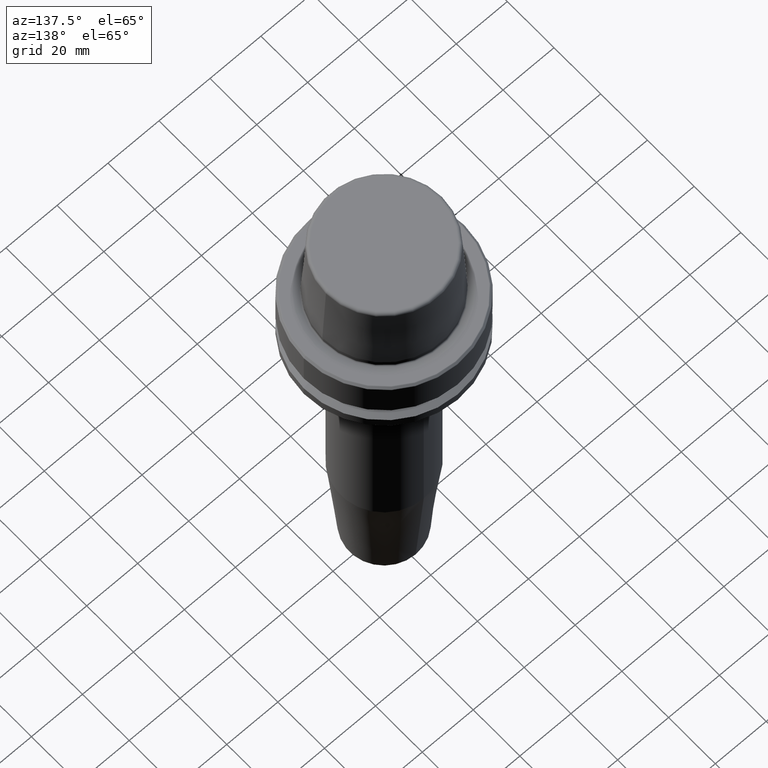
[diagram: clean part render]
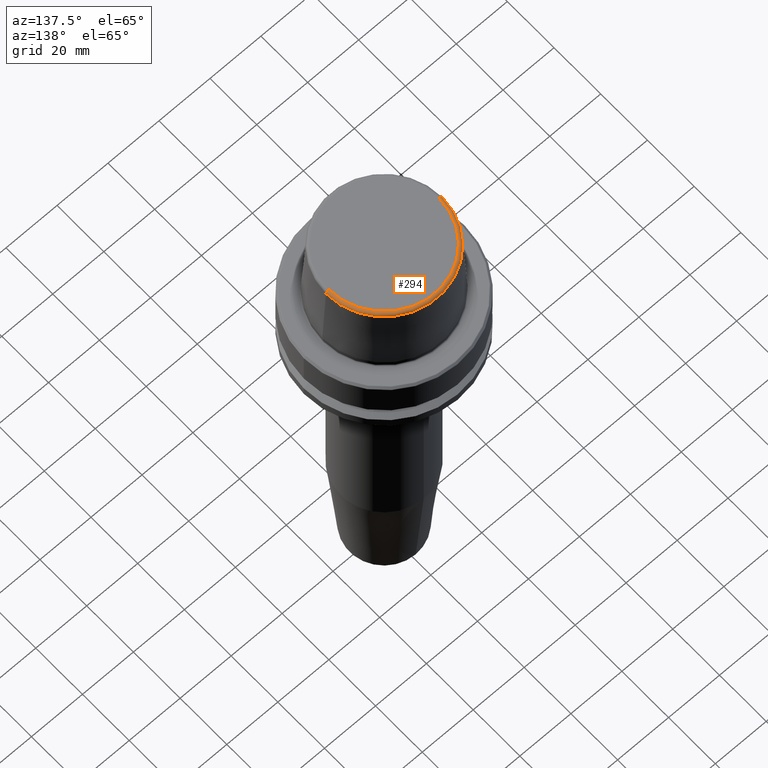
[diagram: same view with one face highlighted and labeled with its STEP entity id]
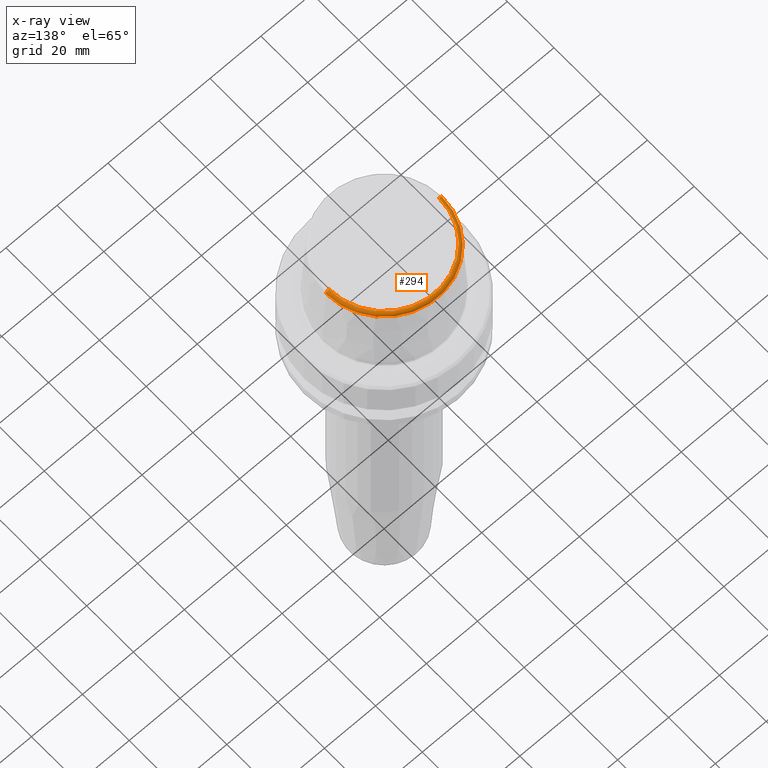
[diagram: x-ray of the same camera — body ghosted, the highlighted face saturated]
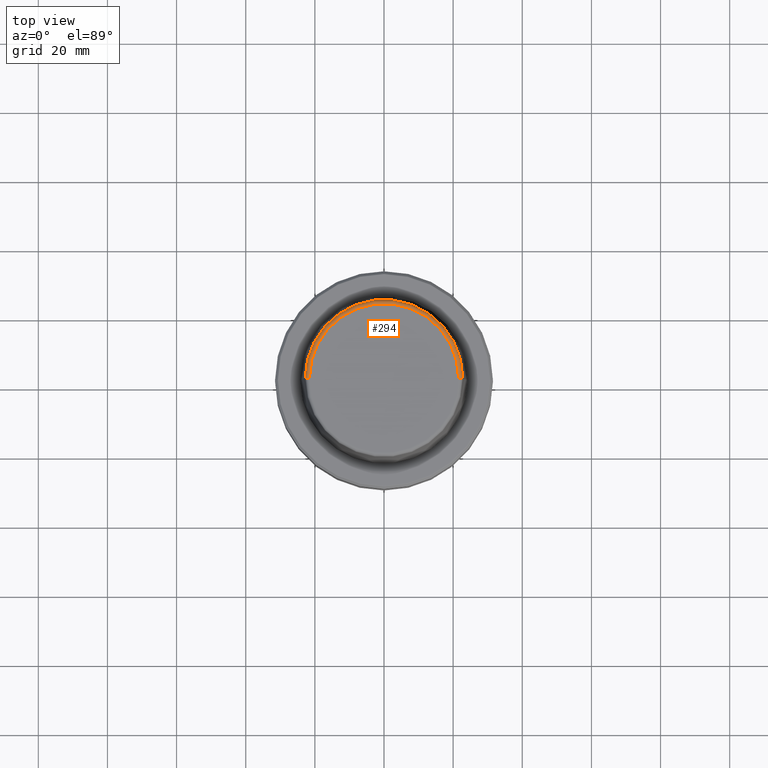
[diagram: same view with one face highlighted and labeled with its STEP entity id]
A machine part, auxiliary view. The second image highlights one B-rep face of the part: STEP entity #294.
The next image is the same camera in x-ray: the body ghosted, the highlighted face saturated — about 0% of this face is hidden behind the body in this view.
A second angle (top view) of the same face is appended — the face is thin or edge-on in the first view.
In plain terms, the highlighted toroidal blend (fillet) surface has major radius 21.5811 mm and minor (blend) radius 1.2 mm.
Its self-contained STEP definition (entity closure, byte-faithful):
#14 = AXIS2_PLACEMENT_3D ( 'NONE', #155, #194, #666 ) ;
#35 = DIRECTION ( 'NONE',  ( 1.224646799147353200E-016, 1.000000000000000000, 0.0000000000000000000 ) ) ;
#43 = CIRCLE ( 'NONE', #683, 1.200000000000003100 ) ;
#72 = EDGE_CURVE ( 'NONE', #1132, #1254, #895, .T. ) ;
#98 = DIRECTION ( 'NONE',  ( 1.000000000000000000, 0.0000000000000000000, 0.0000000000000000000 ) ) ;
#155 = CARTESIAN_POINT ( 'NONE',  ( 0.0000000000000000000, 0.0000000000000000000, 30.76004333261571900 ) ) ;
#194 = DIRECTION ( 'NONE',  ( -0.0000000000000000000, -0.0000000000000000000, 1.000000000000000000 ) ) ;
#220 = ORIENTED_EDGE ( 'NONE', *, *, #72, .T. ) ;
#228 = EDGE_CURVE ( 'NONE', #1132, #1106, #43, .T. ) ;
#232 = DIRECTION ( 'NONE',  ( 0.0000000000000000000, 0.0000000000000000000, -1.000000000000000000 ) ) ;
#294 = ADVANCED_FACE ( 'NONE', ( #647 ), #1033, .T. ) ;
#298 = DIRECTION ( 'NONE',  ( 0.0000000000000000000, -1.000000000000000000, 0.0000000000000000000 ) ) ;
#350 = CARTESIAN_POINT ( 'NONE',  ( 0.0000000000000000000, 0.0000000000000000000, 31.89999999999999900 ) ) ;
#369 = CARTESIAN_POINT ( 'NONE',  ( 21.58108272732117100, 0.0000000000000000000, 30.69999999999999200 ) ) ;
#399 = AXIS2_PLACEMENT_3D ( 'NONE', #977, #35, #888 ) ;
#400 = EDGE_CURVE ( 'NONE', #1254, #1242, #468, .T. ) ;
#446 = CARTESIAN_POINT ( 'NONE',  ( -22.77957961851797100, 0.0000000000000000000, 30.76004333261571900 ) ) ;
#468 = CIRCLE ( 'NONE', #399, 1.200000000000003100 ) ;
#510 = ORIENTED_EDGE ( 'NONE', *, *, #400, .T. ) ;
#517 = ORIENTED_EDGE ( 'NONE', *, *, #228, .F. ) ;
#534 = EDGE_LOOP ( 'NONE', ( #220, #510, #933, #517 ) ) ;
#540 = CARTESIAN_POINT ( 'NONE',  ( -21.58108272732117100, 2.716307157494421400E-015, 31.89999999999999900 ) ) ;
#546 = DIRECTION ( 'NONE',  ( 1.000000000000000000, 0.0000000000000000000, 0.0000000000000000000 ) ) ;
#638 = DIRECTION ( 'NONE',  ( -0.0000000000000000000, -0.0000000000000000000, 1.000000000000000000 ) ) ;
#646 = CARTESIAN_POINT ( 'NONE',  ( 22.77957961851797100, 2.876386432489616700E-015, 30.76004333261571900 ) ) ;
#647 = FACE_OUTER_BOUND ( 'NONE', #534, .T. ) ;
#666 = DIRECTION ( 'NONE',  ( 1.000000000000000000, 0.0000000000000000000, 0.0000000000000000000 ) ) ;
#683 = AXIS2_PLACEMENT_3D ( 'NONE', #369, #298, #232 ) ;
#779 = CIRCLE ( 'NONE', #1201, 21.58108272732117100 ) ;
#787 = DIRECTION ( 'NONE',  ( -0.0000000000000000000, -0.0000000000000000000, 1.000000000000000000 ) ) ;
#888 = DIRECTION ( 'NONE',  ( -1.000000000000000000, 1.224646799147353200E-016, 0.0000000000000000000 ) ) ;
#895 = CIRCLE ( 'NONE', #14, 22.77957961851797100 ) ;
#933 = ORIENTED_EDGE ( 'NONE', *, *, #1241, .F. ) ;
#941 = CARTESIAN_POINT ( 'NONE',  ( 21.58108272732117100, 0.0000000000000000000, 31.89999999999999900 ) ) ;
#977 = CARTESIAN_POINT ( 'NONE',  ( -21.58108272732117100, 2.642920388414810300E-015, 30.69999999999999200 ) ) ;
#1033 = TOROIDAL_SURFACE ( 'NONE', #1196, 21.58108272732117100, 1.200000000000003100 ) ;
#1069 = CARTESIAN_POINT ( 'NONE',  ( 0.0000000000000000000, 0.0000000000000000000, 30.69999999999999200 ) ) ;
#1106 = VERTEX_POINT ( 'NONE', #941 ) ;
#1132 = VERTEX_POINT ( 'NONE', #646 ) ;
#1196 = AXIS2_PLACEMENT_3D ( 'NONE', #1069, #787, #98 ) ;
#1201 = AXIS2_PLACEMENT_3D ( 'NONE', #350, #638, #546 ) ;
#1241 = EDGE_CURVE ( 'NONE', #1106, #1242, #779, .T. ) ;
#1242 = VERTEX_POINT ( 'NONE', #540 ) ;
#1254 = VERTEX_POINT ( 'NONE', #446 ) ;